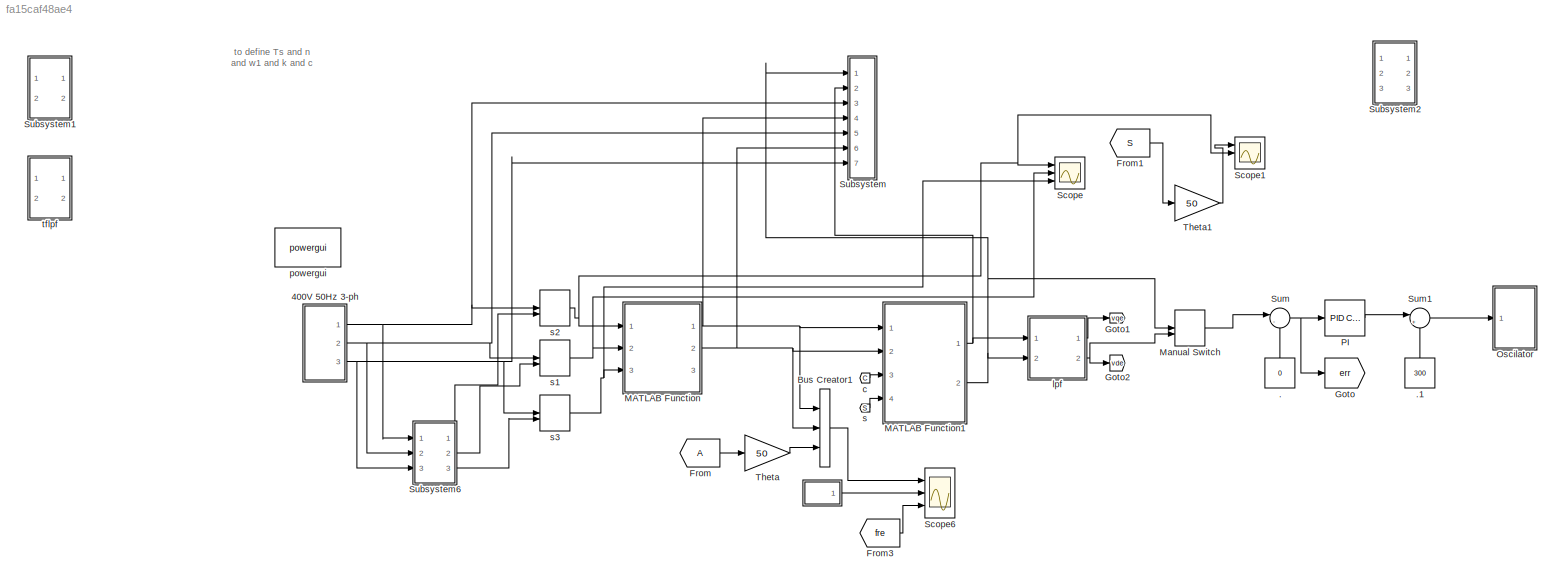
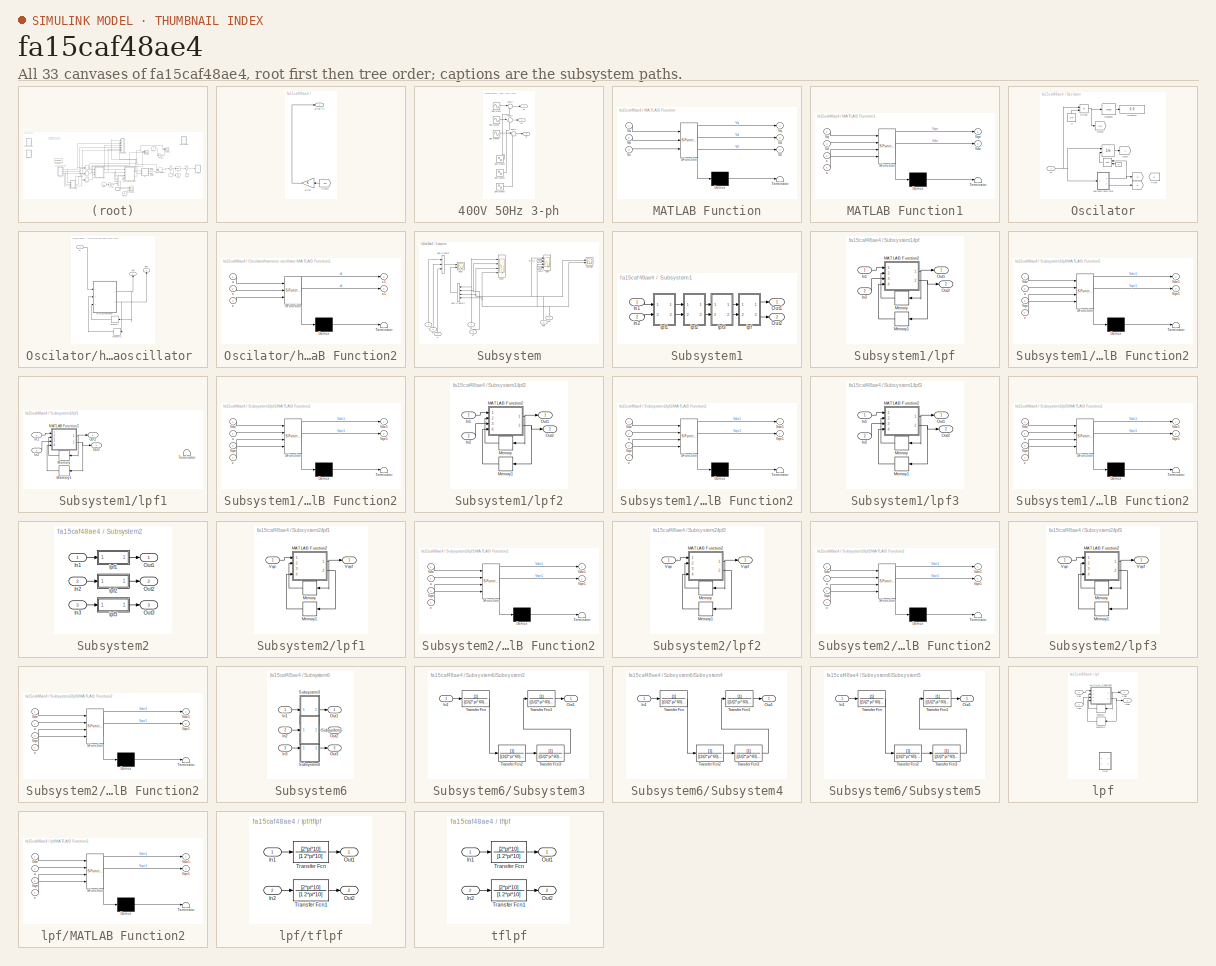
[diagram: thumbnail index - all 33 canvases of the model, root first then tree order]
MODEL slx_fa15caf48ae4
KIND model
CONFIG AbsTol = auto
CONFIG FixedStep = auto
CONFIG MaxStep = auto
CONFIG MinStep = auto
CONFIG RelTol = 1e-3
CONFIG SampleTimeConstraint = Unconstrained
CONFIG Solver = VariableStepAuto
CONFIG SolverMode = Auto
CONFIG SolverName = VariableStepAuto
CONFIG StartTime = 0.0
CONFIG StopTime = 0.5
BLOCK [SubSystem]                
  Ports = [0, 1]
  RequestExecContextInheritance = off
  Variant = off
BLOCK [Gain]                /Error
  OutDataTypeStr = Inherit: Inherit via internal rule
  ParamDataTypeStr = Inherit: Inherit via internal rule
  SaturateOnIntegerOverflow = off
BLOCK [Outport]                /Error PI
  IconDisplay = Port number
BLOCK [From]                /From4
  GotoTag = err
BLOCK [Constant] .
  Value = 0
BLOCK [Constant] .1
  Value = 300
BLOCK [SubSystem] 400V 50Hz 3-ph
  Ports = [0, 3]
  RequestExecContextInheritance = off
  Variant = off
BLOCK [Sin] 400V 50Hz 3-ph/Sine Wave
  Amplitude = c*400*sqrt(2)/sqrt(3)
  Frequency = w1
  Ports = [0, 1]
  SampleTime = Ts
BLOCK [Sin] 400V 50Hz 3-ph/Sine Wave1
  Amplitude = 400*sqrt(2)/sqrt(3)
  Frequency = w1
  Phase = -2*pi/3
  Ports = [0, 1]
  SampleTime = Ts
BLOCK [Sin] 400V 50Hz 3-ph/Sine Wave2
  Amplitude = 400*sqrt(2)/sqrt(3)
  Frequency = w1
  Phase = -4*pi/3
  Ports = [0, 1]
  SampleTime = Ts
BLOCK [Sin] 400V 50Hz 3-ph/Sine Wave3
  Amplitude = 0.2*400*sqrt(2)/sqrt(3)*k
  Frequency = w1*n
  Ports = [0, 1]
  SampleTime = Ts
BLOCK [Sin] 400V 50Hz 3-ph/Sine Wave4
  Amplitude = 0.2*k*400*sqrt(2)/sqrt(3)
  Frequency = w1*n
  Phase = -2*pi/3*n
  Ports = [0, 1]
  SampleTime = Ts
BLOCK [Sin] 400V 50Hz 3-ph/Sine Wave5
  Amplitude = 0.2*k*400*sqrt(2)/sqrt(3)
  Frequency = w1*n
  Phase = -4*pi/3*n
  Ports = [0, 1]
  SampleTime = Ts
BLOCK [Sum] 400V 50Hz 3-ph/Sum1
  IconShape = round
  InputSameDT = off
  Inputs = |++
  OutDataTypeStr = Inherit: Inherit via internal rule
  Ports = [2, 1]
  SaturateOnIntegerOverflow = off
BLOCK [Sum] 400V 50Hz 3-ph/Sum2
  IconShape = round
  InputSameDT = off
  Inputs = |++
  OutDataTypeStr = Inherit: Inherit via internal rule
  Ports = [2, 1]
  SaturateOnIntegerOverflow = off
BLOCK [Sum] 400V 50Hz 3-ph/Sum3
  IconShape = round
  InputSameDT = off
  Inputs = |++
  OutDataTypeStr = Inherit: Inherit via internal rule
  Ports = [2, 1]
  SaturateOnIntegerOverflow = off
BLOCK [Outport] 400V 50Hz 3-ph/Va
  IconDisplay = Port number
BLOCK [Outport] 400V 50Hz 3-ph/Vb
  IconDisplay = Port number
  Port = 2
BLOCK [Outport] 400V 50Hz 3-ph/Vc
  IconDisplay = Port number
  Port = 3
BLOCK [BusCreator] Bus Creator1
  DisplayOption = bar
  InheritFromInputs = on
  Inputs = 3
  Ports = [3, 1]
BLOCK [From] From
  TagVisibility = global
BLOCK [From] From1
  GotoTag = S
  TagVisibility = global
BLOCK [From] From3
  GotoTag = fre
  TagVisibility = global
BLOCK [Goto] Goto
  GotoTag = err
BLOCK [Goto] Goto1
  GotoTag = vqe
BLOCK [Goto] Goto2
  GotoTag = vde
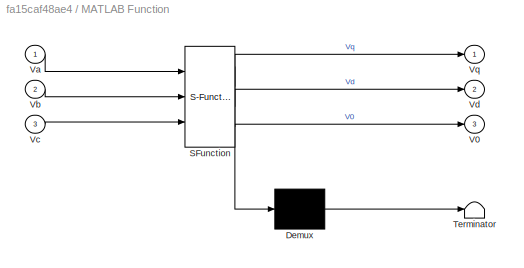
BLOCK [SubSystem] MATLAB Function
  ErrorFcn = Stateflow.Translate.translate
  PermitHierarchicalResolution = ExplicitOnly
  Ports = [3, 3]
  RequestExecContextInheritance = off
  SFBlockType = MATLAB Function
  TreatAsAtomicUnit = on
  Variant = off
BLOCK [Demux] MATLAB Function/ Demux 
  Outputs = 1
  Ports = [1, 1]
BLOCK [S-Function] MATLAB Function/ SFunction 
  EnableBusSupport = on
  FunctionName = sf_sfun
  PortCounts = [3 4]
  Ports = [3, 4]
  SFunctionDeploymentMode = off
  Tag = Stateflow S-Function dummy 2
BLOCK [Terminator] MATLAB Function/ Terminator 
BLOCK [Outport] MATLAB Function/V0
  IconDisplay = Port number
  Port = 3
BLOCK [Inport] MATLAB Function/Va
  IconDisplay = Port number
BLOCK [Inport] MATLAB Function/Vb
  IconDisplay = Port number
  Port = 2
BLOCK [Inport] MATLAB Function/Vc
  IconDisplay = Port number
  Port = 3
BLOCK [Outport] MATLAB Function/Vd
  IconDisplay = Port number
  Port = 2
BLOCK [Outport] MATLAB Function/Vq
  IconDisplay = Port number
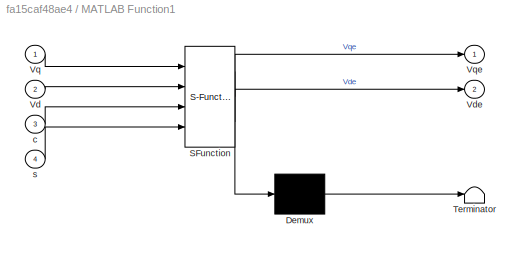
BLOCK [SubSystem] MATLAB Function1
  ErrorFcn = Stateflow.Translate.translate
  PermitHierarchicalResolution = ExplicitOnly
  Ports = [4, 2]
  RequestExecContextInheritance = off
  SFBlockType = MATLAB Function
  TreatAsAtomicUnit = on
  Variant = off
BLOCK [Demux] MATLAB Function1/ Demux 
  Outputs = 1
  Ports = [1, 1]
BLOCK [S-Function] MATLAB Function1/ SFunction 
  EnableBusSupport = on
  FunctionName = sf_sfun
  PortCounts = [4 3]
  Ports = [4, 3]
  SFunctionDeploymentMode = off
  Tag = Stateflow S-Function dummy 1
BLOCK [Terminator] MATLAB Function1/ Terminator 
BLOCK [Inport] MATLAB Function1/Vd
  IconDisplay = Port number
  Port = 2
BLOCK [Outport] MATLAB Function1/Vde
  IconDisplay = Port number
  Port = 2
BLOCK [Inport] MATLAB Function1/Vq
  IconDisplay = Port number
BLOCK [Outport] MATLAB Function1/Vqe
  IconDisplay = Port number
BLOCK [Inport] MATLAB Function1/c
  IconDisplay = Port number
  Port = 3
BLOCK [Inport] MATLAB Function1/s
  IconDisplay = Port number
  Port = 4
BLOCK [ManualSwitch] Manual Switch
BLOCK [SubSystem] Oscilator
  Ports = [1]
  RequestExecContextInheritance = off
  Variant = off
BLOCK [Constant] Oscilator/ 
  Value = 0
BLOCK [Integrator] Oscilator/  
  ExternalReset = rising
  LowerSaturationLimit = 0
  Ports = [2, 1]
  UpperSaturationLimit = 2*pi
BLOCK [Goto] Oscilator/   
  GotoTag = S
  TagVisibility = global
BLOCK [RelationalOperator] Oscilator/    
  InputSameDT = off
  OutDataTypeStr = boolean
  Ports = [2, 1]
BLOCK [Goto] Oscilator/          
  GotoTag = C
  TagVisibility = global
BLOCK [Constant] Oscilator/.2
  Value = 2*pi
BLOCK [Display] Oscilator/Display1
  Decimation = 1
  Ports = [1]
BLOCK [Product] Oscilator/Divide
  InputSameDT = off
  Inputs = */
  OutDataTypeStr = Inherit: Inherit via internal rule
  Ports = [2, 1]
  RndMeth = Floor
  SaturateOnIntegerOverflow = off
BLOCK [From] Oscilator/From
  GotoTag = S
  TagVisibility = global
BLOCK [Goto] Oscilator/Goto
  TagVisibility = global
BLOCK [Goto] Oscilator/Goto3
  GotoTag = fre
  TagVisibility = global
BLOCK [Inport] Oscilator/W
  IconDisplay = Port number
BLOCK [Reference] Oscilator/frequency  REF=powerlib_meascontrol/Measurements/Mean
  Ports = [1, 1]
  SourceBlock = powerlib_meascontrol/Measurements/Mean
  SourceType = Mean
BLOCK [SubSystem] Oscilator/harmonic oscillator 
  Ports = [1, 2]
  RequestExecContextInheritance = off
  Variant = off
BLOCK [Outport] Oscilator/harmonic oscillator /Cos
  IconDisplay = Port number
  Port = 2
BLOCK [SubSystem] Oscilator/harmonic oscillator /MATLAB Function2
  ErrorFcn = Stateflow.Translate.translate
  PermitHierarchicalResolution = ExplicitOnly
  Ports = [3, 2]
  RequestExecContextInheritance = off
  SFBlockType = MATLAB Function
  TreatAsAtomicUnit = on
  Variant = off
BLOCK [Demux] Oscilator/harmonic oscillator /MATLAB Function2/ Demux 
  Outputs = 1
  Ports = [1, 1]
BLOCK [S-Function] Oscilator/harmonic oscillator /MATLAB Function2/ SFunction 
  EnableBusSupport = on
  FunctionName = sf_sfun
  PortCounts = [3 3]
  Ports = [3, 3]
  SFunctionDeploymentMode = off
  Tag = Stateflow S-Function dummy 3
BLOCK [Terminator] Oscilator/harmonic oscillator /MATLAB Function2/ Terminator 
BLOCK [Inport] Oscilator/harmonic oscillator /MATLAB Function2/c
  IconDisplay = Port number
  Port = 3
BLOCK [Outport] Oscilator/harmonic oscillator /MATLAB Function2/c1
  IconDisplay = Port number
BLOCK [Inport] Oscilator/harmonic oscillator /MATLAB Function2/s
  IconDisplay = Port number
  Port = 2
BLOCK [Outport] Oscilator/harmonic oscillator /MATLAB Function2/s1
  IconDisplay = Port number
  Port = 2
BLOCK [Inport] Oscilator/harmonic oscillator /MATLAB Function2/u
  IconDisplay = Port number
BLOCK [Memory] Oscilator/harmonic oscillator /Memory
  X0 = 1
BLOCK [Memory] Oscilator/harmonic oscillator /Memory1
BLOCK [Outport] Oscilator/harmonic oscillator /Sine
  IconDisplay = Port number
BLOCK [Inport] Oscilator/harmonic oscillator /w
  IconDisplay = Port number
BLOCK [Reference] PI  REF=simulink/Continuous/PID Controller
  Ports = [1, 1]
  SourceBlock = simulink/Continuous/PID Controller
  SourceType = PID 1dof
BLOCK [Scope] Scope
  NumInputPorts = 3
  Ports = [3]
  ScopeSpecificationString = Simulink.scopes.TimeScopeBlockCfg('CurrentConfiguration', extmgr.ConfigurationSet(extmgr.Configuration('Core','General UI',true),extmgr.Configuration('Core','Source UI',true),extmgr.Configuration('Sources','WiredSimulink',true,'DataLoggingVariableName','ScopeData1'),extmgr.Configuration('Visuals','Time Domain',true,'SerializedDisplays',{struct('MinYLimReal','-326.04404','MaxYLimReal','335.73218','...<+1461ch>
BLOCK [Scope] Scope1
  NumInputPorts = 3
  Ports = [3]
  ScopeSpecificationString = Simulink.scopes.TimeScopeBlockCfg('CurrentConfiguration', extmgr.ConfigurationSet(extmgr.Configuration('Core','General UI',true),extmgr.Configuration('Core','Source UI',true),extmgr.Configuration('Sources','WiredSimulink',true,'DataLoggingVariableName','ScopeData2'),extmgr.Configuration('Visuals','Time Domain',true,'SerializedDisplays',{struct('MinYLimReal','-326.04404','MaxYLimReal','335.73218','...<+1471ch>
BLOCK [Scope] Scope6
  NumInputPorts = 3
  Ports = [3]
  ScopeSpecificationString = Simulink.scopes.TimeScopeBlockCfg('CurrentConfiguration', extmgr.ConfigurationSet(extmgr.Configuration('Core','General UI',true),extmgr.Configuration('Core','Source UI',true),extmgr.Configuration('Sources','WiredSimulink',true,'DataLoggingVariableName','ScopeData2'),extmgr.Configuration('Visuals','Time Domain',true,'SerializedDisplays',{struct('MinYLimReal','-408.24829','MaxYLimReal','408.24829','...<+3290ch>
BLOCK [SubSystem] Subsystem
  Ports = [7]
  RequestExecContextInheritance = off
  Variant = off
BLOCK [Inport] Subsystem/A
  IconDisplay = Port number
  Port = 3
BLOCK [Inport] Subsystem/B
  IconDisplay = Port number
  Port = 5
BLOCK [BusCreator] Subsystem/Bus Creator
  DisplayOption = bar
  InheritFromInputs = on
  Inputs = 3
  Ports = [3, 1]
BLOCK [BusCreator] Subsystem/Bus Creator4
  DisplayOption = bar
  InheritFromInputs = on
  Inputs = 4
  Ports = [4, 1]
BLOCK [Inport] Subsystem/C
  IconDisplay = Port number
  Port = 7
BLOCK [From] Subsystem/From1
  GotoTag = vqe
BLOCK [From] Subsystem/From2
  GotoTag = vde
BLOCK [Inport] Subsystem/Vd 
  IconDisplay = Port number
  Port = 6
BLOCK [Inport] Subsystem/Vde
  IconDisplay = Port number
BLOCK [Inport] Subsystem/Vq
  IconDisplay = Port number
  Port = 4
BLOCK [Inport] Subsystem/Vqe
  IconDisplay = Port number
  Port = 2
BLOCK [Scope] Subsystem/input
  NumInputPorts = 2
  Ports = [2]
  ScopeSpecificationString = Simulink.scopes.TimeScopeBlockCfg('CurrentConfiguration', extmgr.ConfigurationSet(extmgr.Configuration('Core','General UI',true),extmgr.Configuration('Core','Source UI',true),extmgr.Configuration('Sources','WiredSimulink',true),extmgr.Configuration('Visuals','Time Domain',true,'SerializedDisplays',{struct('MinYLimReal','-489.89795','MaxYLimReal','489.89795','YLabelReal','','MinYLimMag',' 0.00000',...<+3117ch>
BLOCK [Scope] Subsystem/vdlpf
  NumInputPorts = 4
  Ports = [4]
  ScopeSpecificationString = Simulink.scopes.TimeScopeBlockCfg('CurrentConfiguration', extmgr.ConfigurationSet(extmgr.Configuration('Core','General UI',true),extmgr.Configuration('Core','Source UI',true),extmgr.Configuration('Sources','WiredSimulink',true,'DataLoggingVariableName','ScopeData4'),extmgr.Configuration('Visuals','Time Domain',true,'SerializedDisplays',{struct('MinYLimReal','163.68687','MaxYLimReal','417.07496','Y...<+4344ch>
BLOCK [Scope] Subsystem/vdwolpf
  NumInputPorts = 2
  Ports = [2]
  ScopeSpecificationString = Simulink.scopes.TimeScopeBlockCfg('CurrentConfiguration', extmgr.ConfigurationSet(extmgr.Configuration('Core','General UI',true),extmgr.Configuration('Core','Source UI',true),extmgr.Configuration('Sources','WiredSimulink',true,'DataLoggingVariableName','ScopeData1'),extmgr.Configuration('Visuals','Time Domain',true,'SerializedDisplays',{struct('MinYLimReal','-40.49474','MaxYLimReal','368.7961','YL...<+2150ch>
BLOCK [Scope] Subsystem/vqvd
  NumInputPorts = 4
  Ports = [4]
  ScopeSpecificationString = Simulink.scopes.TimeScopeBlockCfg('CurrentConfiguration', extmgr.ConfigurationSet(extmgr.Configuration('Core','General UI',true),extmgr.Configuration('Core','Source UI',true),extmgr.Configuration('Sources','WiredSimulink',true,'DataLoggingVariableName','ScopeData3'),extmgr.Configuration('Visuals','Time Domain',true,'SerializedDisplays',{struct('MinYLimReal','-898.25999','MaxYLimReal','899.17003','...<+4392ch>
BLOCK [SubSystem] Subsystem1
  Ports = [2, 2]
  RequestExecContextInheritance = off
  Variant = off
BLOCK [Inport] Subsystem1/In1
  IconDisplay = Port number
BLOCK [Inport] Subsystem1/In2
  IconDisplay = Port number
  Port = 2
BLOCK [Outport] Subsystem1/Out1
  IconDisplay = Port number
BLOCK [Outport] Subsystem1/Out2
  IconDisplay = Port number
  Port = 2
BLOCK [SubSystem] Subsystem1/lpf
  Ports = [2, 2]
  RequestExecContextInheritance = off
  Variant = off
BLOCK [Inport] Subsystem1/lpf/In1
  IconDisplay = Port number
BLOCK [Inport] Subsystem1/lpf/In2
  IconDisplay = Port number
  Port = 2
BLOCK [SubSystem] Subsystem1/lpf/MATLAB Function2
  ErrorFcn = Stateflow.Translate.translate
  PermitHierarchicalResolution = ExplicitOnly
  Ports = [4, 2]
  RequestExecContextInheritance = off
  SFBlockType = MATLAB Function
  TreatAsAtomicUnit = on
  Variant = off
BLOCK [Demux] Subsystem1/lpf/MATLAB Function2/ Demux 
  Outputs = 1
  Ports = [1, 1]
BLOCK [S-Function] Subsystem1/lpf/MATLAB Function2/ SFunction 
  EnableBusSupport = on
  FunctionName = sf_sfun
  PortCounts = [4 3]
  Ports = [4, 3]
  SFunctionDeploymentMode = off
  Tag = Stateflow S-Function dummy 5
BLOCK [Terminator] Subsystem1/lpf/MATLAB Function2/ Terminator 
BLOCK [Inport] Subsystem1/lpf/MATLAB Function2/Vde
  IconDisplay = Port number
BLOCK [Outport] Subsystem1/lpf/MATLAB Function2/Vde1
  IconDisplay = Port number
BLOCK [Inport] Subsystem1/lpf/MATLAB Function2/Vqe
  IconDisplay = Port number
  Port = 3
BLOCK [Outport] Subsystem1/lpf/MATLAB Function2/Vqe1
  IconDisplay = Port number
  Port = 2
BLOCK [Inport] Subsystem1/lpf/MATLAB Function2/u
  IconDisplay = Port number
  Port = 2
BLOCK [Inport] Subsystem1/lpf/MATLAB Function2/v
  IconDisplay = Port number
  Port = 4
BLOCK [Memory] Subsystem1/lpf/Memory
BLOCK [Memory] Subsystem1/lpf/Memory1
BLOCK [Outport] Subsystem1/lpf/Out1
  IconDisplay = Port number
BLOCK [Outport] Subsystem1/lpf/Out2
  IconDisplay = Port number
  Port = 2
BLOCK [SubSystem] Subsystem1/lpf1
  Ports = [2, 2]
  RequestExecContextInheritance = off
  Variant = off
BLOCK [Inport] Subsystem1/lpf1/In1
  IconDisplay = Port number
BLOCK [Inport] Subsystem1/lpf1/In2
  IconDisplay = Port number
  Port = 2
BLOCK [SubSystem] Subsystem1/lpf1/MATLAB Function2
  ErrorFcn = Stateflow.Translate.translate
  PermitHierarchicalResolution = ExplicitOnly
  Ports = [4, 2]
  RequestExecContextInheritance = off
  SFBlockType = MATLAB Function
  TreatAsAtomicUnit = on
  Variant = off
BLOCK [Demux] Subsystem1/lpf1/MATLAB Function2/ Demux 
  Outputs = 1
  Ports = [1, 1]
BLOCK [S-Function] Subsystem1/lpf1/MATLAB Function2/ SFunction 
  EnableBusSupport = on
  FunctionName = sf_sfun
  PortCounts = [4 3]
  Ports = [4, 3]
  SFunctionDeploymentMode = off
  Tag = Stateflow S-Function dummy 6
BLOCK [Terminator] Subsystem1/lpf1/MATLAB Function2/ Terminator 
BLOCK [Inport] Subsystem1/lpf1/MATLAB Function2/Vde
  IconDisplay = Port number
BLOCK [Outport] Subsystem1/lpf1/MATLAB Function2/Vde1
  IconDisplay = Port number
BLOCK [Inport] Subsystem1/lpf1/MATLAB Function2/Vqe
  IconDisplay = Port number
  Port = 3
BLOCK [Outport] Subsystem1/lpf1/MATLAB Function2/Vqe1
  IconDisplay = Port number
  Port = 2
BLOCK [Inport] Subsystem1/lpf1/MATLAB Function2/u
  IconDisplay = Port number
  Port = 2
BLOCK [Inport] Subsystem1/lpf1/MATLAB Function2/v
  IconDisplay = Port number
  Port = 4
BLOCK [Memory] Subsystem1/lpf1/Memory
BLOCK [Memory] Subsystem1/lpf1/Memory1
BLOCK [Outport] Subsystem1/lpf1/Out1
  IconDisplay = Port number
BLOCK [Outport] Subsystem1/lpf1/Out2
  IconDisplay = Port number
  Port = 2
BLOCK [Terminator] Subsystem1/lpf1/Terminator
BLOCK [SubSystem] Subsystem1/lpf2
  Ports = [2, 2]
  RequestExecContextInheritance = off
  Variant = off
BLOCK [Inport] Subsystem1/lpf2/In1
  IconDisplay = Port number
BLOCK [Inport] Subsystem1/lpf2/In2
  IconDisplay = Port number
  Port = 2
BLOCK [SubSystem] Subsystem1/lpf2/MATLAB Function2
  ErrorFcn = Stateflow.Translate.translate
  PermitHierarchicalResolution = ExplicitOnly
  Ports = [4, 2]
  RequestExecContextInheritance = off
  SFBlockType = MATLAB Function
  TreatAsAtomicUnit = on
  Variant = off
BLOCK [Demux] Subsystem1/lpf2/MATLAB Function2/ Demux 
  Outputs = 1
  Ports = [1, 1]
BLOCK [S-Function] Subsystem1/lpf2/MATLAB Function2/ SFunction 
  EnableBusSupport = on
  FunctionName = sf_sfun
  PortCounts = [4 3]
  Ports = [4, 3]
  SFunctionDeploymentMode = off
  Tag = Stateflow S-Function dummy 7
BLOCK [Terminator] Subsystem1/lpf2/MATLAB Function2/ Terminator 
BLOCK [Inport] Subsystem1/lpf2/MATLAB Function2/Vde
  IconDisplay = Port number
BLOCK [Outport] Subsystem1/lpf2/MATLAB Function2/Vde1
  IconDisplay = Port number
BLOCK [Inport] Subsystem1/lpf2/MATLAB Function2/Vqe
  IconDisplay = Port number
  Port = 3
BLOCK [Outport] Subsystem1/lpf2/MATLAB Function2/Vqe1
  IconDisplay = Port number
  Port = 2
BLOCK [Inport] Subsystem1/lpf2/MATLAB Function2/u
  IconDisplay = Port number
  Port = 2
BLOCK [Inport] Subsystem1/lpf2/MATLAB Function2/v
  IconDisplay = Port number
  Port = 4
BLOCK [Memory] Subsystem1/lpf2/Memory
BLOCK [Memory] Subsystem1/lpf2/Memory1
BLOCK [Outport] Subsystem1/lpf2/Out1
  IconDisplay = Port number
BLOCK [Outport] Subsystem1/lpf2/Out2
  IconDisplay = Port number
  Port = 2
BLOCK [SubSystem] Subsystem1/lpf3
  Ports = [2, 2]
  RequestExecContextInheritance = off
  Variant = off
BLOCK [Inport] Subsystem1/lpf3/In1
  IconDisplay = Port number
BLOCK [Inport] Subsystem1/lpf3/In2
  IconDisplay = Port number
  Port = 2
BLOCK [SubSystem] Subsystem1/lpf3/MATLAB Function2
  ErrorFcn = Stateflow.Translate.translate
  PermitHierarchicalResolution = ExplicitOnly
  Ports = [4, 2]
  RequestExecContextInheritance = off
  SFBlockType = MATLAB Function
  TreatAsAtomicUnit = on
  Variant = off
BLOCK [Demux] Subsystem1/lpf3/MATLAB Function2/ Demux 
  Outputs = 1
  Ports = [1, 1]
BLOCK [S-Function] Subsystem1/lpf3/MATLAB Function2/ SFunction 
  EnableBusSupport = on
  FunctionName = sf_sfun
  PortCounts = [4 3]
  Ports = [4, 3]
  SFunctionDeploymentMode = off
  Tag = Stateflow S-Function dummy 8
BLOCK [Terminator] Subsystem1/lpf3/MATLAB Function2/ Terminator 
BLOCK [Inport] Subsystem1/lpf3/MATLAB Function2/Vde
  IconDisplay = Port number
BLOCK [Outport] Subsystem1/lpf3/MATLAB Function2/Vde1
  IconDisplay = Port number
BLOCK [Inport] Subsystem1/lpf3/MATLAB Function2/Vqe
  IconDisplay = Port number
  Port = 3
BLOCK [Outport] Subsystem1/lpf3/MATLAB Function2/Vqe1
  IconDisplay = Port number
  Port = 2
BLOCK [Inport] Subsystem1/lpf3/MATLAB Function2/u
  IconDisplay = Port number
  Port = 2
BLOCK [Inport] Subsystem1/lpf3/MATLAB Function2/v
  IconDisplay = Port number
  Port = 4
BLOCK [Memory] Subsystem1/lpf3/Memory
BLOCK [Memory] Subsystem1/lpf3/Memory1
BLOCK [Outport] Subsystem1/lpf3/Out1
  IconDisplay = Port number
BLOCK [Outport] Subsystem1/lpf3/Out2
  IconDisplay = Port number
  Port = 2
BLOCK [SubSystem] Subsystem2
  Ports = [3, 3]
  RequestExecContextInheritance = off
  Variant = off
BLOCK [Inport] Subsystem2/In1
  IconDisplay = Port number
BLOCK [Inport] Subsystem2/In2
  IconDisplay = Port number
  Port = 2
BLOCK [Inport] Subsystem2/In3
  IconDisplay = Port number
  Port = 3
BLOCK [Outport] Subsystem2/Out1
  IconDisplay = Port number
BLOCK [Outport] Subsystem2/Out2
  IconDisplay = Port number
  Port = 2
BLOCK [Outport] Subsystem2/Out3
  IconDisplay = Port number
  Port = 3
BLOCK [SubSystem] Subsystem2/lpf1
  Ports = [1, 1]
  RequestExecContextInheritance = off
  Variant = off
BLOCK [SubSystem] Subsystem2/lpf1/MATLAB Function2
  ErrorFcn = Stateflow.Translate.translate
  PermitHierarchicalResolution = ExplicitOnly
  Ports = [4, 2]
  RequestExecContextInheritance = off
  SFBlockType = MATLAB Function
  TreatAsAtomicUnit = on
  Variant = off
BLOCK [Demux] Subsystem2/lpf1/MATLAB Function2/ Demux 
  Outputs = 1
  Ports = [1, 1]
BLOCK [S-Function] Subsystem2/lpf1/MATLAB Function2/ SFunction 
  EnableBusSupport = on
  FunctionName = sf_sfun
  PortCounts = [4 3]
  Ports = [4, 3]
  SFunctionDeploymentMode = off
  Tag = Stateflow S-Function dummy 9
BLOCK [Terminator] Subsystem2/lpf1/MATLAB Function2/ Terminator 
BLOCK [Inport] Subsystem2/lpf1/MATLAB Function2/Vde
  IconDisplay = Port number
BLOCK [Outport] Subsystem2/lpf1/MATLAB Function2/Vde1
  IconDisplay = Port number
BLOCK [Inport] Subsystem2/lpf1/MATLAB Function2/Vqe
  IconDisplay = Port number
  Port = 3
BLOCK [Outport] Subsystem2/lpf1/MATLAB Function2/Vqe1
  IconDisplay = Port number
  Port = 2
BLOCK [Inport] Subsystem2/lpf1/MATLAB Function2/u
  IconDisplay = Port number
  Port = 2
BLOCK [Inport] Subsystem2/lpf1/MATLAB Function2/v
  IconDisplay = Port number
  Port = 4
BLOCK [Memory] Subsystem2/lpf1/Memory
BLOCK [Memory] Subsystem2/lpf1/Memory1
BLOCK [Inport] Subsystem2/lpf1/Vqe
  IconDisplay = Port number
BLOCK [Outport] Subsystem2/lpf1/Vqef
  IconDisplay = Port number
BLOCK [SubSystem] Subsystem2/lpf2
  Ports = [1, 1]
  RequestExecContextInheritance = off
  Variant = off
BLOCK [SubSystem] Subsystem2/lpf2/MATLAB Function2
  ErrorFcn = Stateflow.Translate.translate
  PermitHierarchicalResolution = ExplicitOnly
  Ports = [4, 2]
  RequestExecContextInheritance = off
  SFBlockType = MATLAB Function
  TreatAsAtomicUnit = on
  Variant = off
BLOCK [Demux] Subsystem2/lpf2/MATLAB Function2/ Demux 
  Outputs = 1
  Ports = [1, 1]
BLOCK [S-Function] Subsystem2/lpf2/MATLAB Function2/ SFunction 
  EnableBusSupport = on
  FunctionName = sf_sfun
  PortCounts = [4 3]
  Ports = [4, 3]
  SFunctionDeploymentMode = off
  Tag = Stateflow S-Function dummy 10
BLOCK [Terminator] Subsystem2/lpf2/MATLAB Function2/ Terminator 
BLOCK [Inport] Subsystem2/lpf2/MATLAB Function2/Vde
  IconDisplay = Port number
BLOCK [Outport] Subsystem2/lpf2/MATLAB Function2/Vde1
  IconDisplay = Port number
BLOCK [Inport] Subsystem2/lpf2/MATLAB Function2/Vqe
  IconDisplay = Port number
  Port = 3
BLOCK [Outport] Subsystem2/lpf2/MATLAB Function2/Vqe1
  IconDisplay = Port number
  Port = 2
BLOCK [Inport] Subsystem2/lpf2/MATLAB Function2/u
  IconDisplay = Port number
  Port = 2
BLOCK [Inport] Subsystem2/lpf2/MATLAB Function2/v
  IconDisplay = Port number
  Port = 4
BLOCK [Memory] Subsystem2/lpf2/Memory
BLOCK [Memory] Subsystem2/lpf2/Memory1
BLOCK [Inport] Subsystem2/lpf2/Vqe
  IconDisplay = Port number
BLOCK [Outport] Subsystem2/lpf2/Vqef
  IconDisplay = Port number
BLOCK [SubSystem] Subsystem2/lpf3
  Ports = [1, 1]
  RequestExecContextInheritance = off
  Variant = off
BLOCK [SubSystem] Subsystem2/lpf3/MATLAB Function2
  ErrorFcn = Stateflow.Translate.translate
  PermitHierarchicalResolution = ExplicitOnly
  Ports = [4, 2]
  RequestExecContextInheritance = off
  SFBlockType = MATLAB Function
  TreatAsAtomicUnit = on
  Variant = off
BLOCK [Demux] Subsystem2/lpf3/MATLAB Function2/ Demux 
  Outputs = 1
  Ports = [1, 1]
BLOCK [S-Function] Subsystem2/lpf3/MATLAB Function2/ SFunction 
  EnableBusSupport = on
  FunctionName = sf_sfun
  PortCounts = [4 3]
  Ports = [4, 3]
  SFunctionDeploymentMode = off
  Tag = Stateflow S-Function dummy 11
BLOCK [Terminator] Subsystem2/lpf3/MATLAB Function2/ Terminator 
BLOCK [Inport] Subsystem2/lpf3/MATLAB Function2/Vde
  IconDisplay = Port number
BLOCK [Outport] Subsystem2/lpf3/MATLAB Function2/Vde1
  IconDisplay = Port number
BLOCK [Inport] Subsystem2/lpf3/MATLAB Function2/Vqe
  IconDisplay = Port number
  Port = 3
BLOCK [Outport] Subsystem2/lpf3/MATLAB Function2/Vqe1
  IconDisplay = Port number
  Port = 2
BLOCK [Inport] Subsystem2/lpf3/MATLAB Function2/u
  IconDisplay = Port number
  Port = 2
BLOCK [Inport] Subsystem2/lpf3/MATLAB Function2/v
  IconDisplay = Port number
  Port = 4
BLOCK [Memory] Subsystem2/lpf3/Memory
BLOCK [Memory] Subsystem2/lpf3/Memory1
BLOCK [Inport] Subsystem2/lpf3/Vqe
  IconDisplay = Port number
BLOCK [Outport] Subsystem2/lpf3/Vqef
  IconDisplay = Port number
BLOCK [SubSystem] Subsystem6
  Ports = [3, 3]
  RequestExecContextInheritance = off
  Variant = off
BLOCK [Inport] Subsystem6/In1
  IconDisplay = Port number
BLOCK [Inport] Subsystem6/In2
  IconDisplay = Port number
  Port = 2
BLOCK [Inport] Subsystem6/In3
  IconDisplay = Port number
  Port = 3
BLOCK [Outport] Subsystem6/Out1
  IconDisplay = Port number
BLOCK [Outport] Subsystem6/Out2
  IconDisplay = Port number
  Port = 2
BLOCK [Outport] Subsystem6/Out3
  IconDisplay = Port number
  Port = 3
BLOCK [SubSystem] Subsystem6/Subsystem3
  Ports = [1, 1]
  RequestExecContextInheritance = off
  Variant = off
BLOCK [Inport] Subsystem6/Subsystem3/In1
  IconDisplay = Port number
BLOCK [Outport] Subsystem6/Subsystem3/Out1
  IconDisplay = Port number
BLOCK [TransferFcn] Subsystem6/Subsystem3/Transfer Fcn
  Denominator = [(1/(2*pi*60)) 1]
BLOCK [TransferFcn] Subsystem6/Subsystem3/Transfer Fcn1
  Denominator = [(1/(2*pi*60)) 1]
BLOCK [TransferFcn] Subsystem6/Subsystem3/Transfer Fcn2
  Denominator = [(1/(2*pi*60)) 1]
BLOCK [TransferFcn] Subsystem6/Subsystem3/Transfer Fcn3
  Denominator = [(1/(2*pi*60)) 1]
BLOCK [SubSystem] Subsystem6/Subsystem4
  Ports = [1, 1]
  RequestExecContextInheritance = off
  Variant = off
BLOCK [Inport] Subsystem6/Subsystem4/In1
  IconDisplay = Port number
BLOCK [Outport] Subsystem6/Subsystem4/Out1
  IconDisplay = Port number
BLOCK [TransferFcn] Subsystem6/Subsystem4/Transfer Fcn
  Denominator = [(1/(2*pi*60)) 1]
BLOCK [TransferFcn] Subsystem6/Subsystem4/Transfer Fcn1
  Denominator = [(1/(2*pi*60)) 1]
BLOCK [TransferFcn] Subsystem6/Subsystem4/Transfer Fcn2
  Denominator = [(1/(2*pi*60)) 1]
BLOCK [TransferFcn] Subsystem6/Subsystem4/Transfer Fcn3
  Denominator = [(1/(2*pi*60)) 1]
BLOCK [SubSystem] Subsystem6/Subsystem5
  Ports = [1, 1]
  RequestExecContextInheritance = off
  Variant = off
BLOCK [Inport] Subsystem6/Subsystem5/In1
  IconDisplay = Port number
BLOCK [Outport] Subsystem6/Subsystem5/Out1
  IconDisplay = Port number
BLOCK [TransferFcn] Subsystem6/Subsystem5/Transfer Fcn
  Denominator = [(1/(2*pi*60)) 1]
BLOCK [TransferFcn] Subsystem6/Subsystem5/Transfer Fcn1
  Denominator = [(1/(2*pi*60)) 1]
BLOCK [TransferFcn] Subsystem6/Subsystem5/Transfer Fcn2
  Denominator = [(1/(2*pi*60)) 1]
BLOCK [TransferFcn] Subsystem6/Subsystem5/Transfer Fcn3
  Denominator = [(1/(2*pi*60)) 1]
BLOCK [Sum] Sum
  IconShape = round
  InputSameDT = off
  Inputs = |-+
  OutDataTypeStr = Inherit: Inherit via internal rule
  Ports = [2, 1]
  SaturateOnIntegerOverflow = off
BLOCK [Sum] Sum1
  IconShape = round
  InputSameDT = off
  Inputs = |++
  OutDataTypeStr = Inherit: Inherit via internal rule
  Ports = [2, 1]
  SaturateOnIntegerOverflow = off
BLOCK [Gain] Theta
  Gain = 50
  OutDataTypeStr = Inherit: Inherit via internal rule
  ParamDataTypeStr = Inherit: Inherit via internal rule
  SaturateOnIntegerOverflow = off
BLOCK [Gain] Theta1
  Gain = 50
  OutDataTypeStr = Inherit: Inherit via internal rule
  ParamDataTypeStr = Inherit: Inherit via internal rule
  SaturateOnIntegerOverflow = off
BLOCK [From] c 
  GotoTag = C
  TagVisibility = global
BLOCK [SubSystem] lpf
  Ports = [2, 2]
  RequestExecContextInheritance = off
  Variant = off
BLOCK [SubSystem] lpf/MATLAB Function2
  ErrorFcn = Stateflow.Translate.translate
  PermitHierarchicalResolution = ExplicitOnly
  Ports = [4, 2]
  RequestExecContextInheritance = off
  SFBlockType = MATLAB Function
  TreatAsAtomicUnit = on
  Variant = off
BLOCK [Demux] lpf/MATLAB Function2/ Demux 
  Outputs = 1
  Ports = [1, 1]
BLOCK [S-Function] lpf/MATLAB Function2/ SFunction 
  EnableBusSupport = on
  FunctionName = sf_sfun
  PortCounts = [4 3]
  Ports = [4, 3]
  SFunctionDeploymentMode = off
  Tag = Stateflow S-Function dummy 4
BLOCK [Terminator] lpf/MATLAB Function2/ Terminator 
BLOCK [Inport] lpf/MATLAB Function2/Vde
  IconDisplay = Port number
BLOCK [Outport] lpf/MATLAB Function2/Vde1
  IconDisplay = Port number
BLOCK [Inport] lpf/MATLAB Function2/Vqe
  IconDisplay = Port number
  Port = 3
BLOCK [Outport] lpf/MATLAB Function2/Vqe1
  IconDisplay = Port number
  Port = 2
BLOCK [Inport] lpf/MATLAB Function2/u
  IconDisplay = Port number
  Port = 2
BLOCK [Inport] lpf/MATLAB Function2/v
  IconDisplay = Port number
  Port = 4
BLOCK [Memory] lpf/Memory
BLOCK [Memory] lpf/Memory1
BLOCK [Inport] lpf/Vde
  IconDisplay = Port number
  Port = 2
BLOCK [Outport] lpf/Vdef
  IconDisplay = Port number
  Port = 2
BLOCK [Inport] lpf/Vqe
  IconDisplay = Port number
BLOCK [Outport] lpf/Vqef
  IconDisplay = Port number
BLOCK [SubSystem] lpf/tflpf
  Ports = [2, 2]
  RequestExecContextInheritance = off
  Variant = off
BLOCK [Inport] lpf/tflpf/In1
  IconDisplay = Port number
BLOCK [Inport] lpf/tflpf/In2
  IconDisplay = Port number
  Port = 2
BLOCK [Outport] lpf/tflpf/Out1
  IconDisplay = Port number
BLOCK [Outport] lpf/tflpf/Out2
  IconDisplay = Port number
  Port = 2
BLOCK [TransferFcn] lpf/tflpf/Transfer Fcn
  Denominator = [1 2*pi*10]
  Numerator = [2*pi*10]
BLOCK [TransferFcn] lpf/tflpf/Transfer Fcn1
  Denominator = [1 2*pi*10]
  Numerator = [2*pi*10]
BLOCK [Reference] powergui  REF=powerlib/powergui
  Ports = []
  Priority = 1
  SourceBlock = powerlib/powergui
  SourceType = PSB option menu block
  UserDataPersistent = on
BLOCK [From] s 
  GotoTag = S
  TagVisibility = global
BLOCK [ManualSwitch] s1
  CurrentSetting = 0
BLOCK [ManualSwitch] s2
  CurrentSetting = 0
BLOCK [ManualSwitch] s3 
  CurrentSetting = 0
BLOCK [SubSystem] tflpf
  Ports = [2, 2]
  RequestExecContextInheritance = off
  Variant = off
BLOCK [Inport] tflpf/In1
  IconDisplay = Port number
BLOCK [Inport] tflpf/In2
  IconDisplay = Port number
  Port = 2
BLOCK [Outport] tflpf/Out1
  IconDisplay = Port number
BLOCK [Outport] tflpf/Out2
  IconDisplay = Port number
  Port = 2
BLOCK [TransferFcn] tflpf/Transfer Fcn
  Denominator = [1 2*pi*10]
  Numerator = [2*pi*10]
BLOCK [TransferFcn] tflpf/Transfer Fcn1
  Denominator = [1 2*pi*10]
  Numerator = [2*pi*10]
ANNOTATION (root): to define Ts and n and w1 and k and c
LINE                /Error:1 ->                /Error PI:1
LINE                /From4:1 ->                /Error:1
LINE                :1 -> Scope6:2
LINE .1:1 -> Sum1:2
LINE .:1 -> Sum:2
LINE 400V 50Hz 3-ph/Sine Wave1:1 -> 400V 50Hz 3-ph/Sum2:1
LINE 400V 50Hz 3-ph/Sine Wave2:1 -> 400V 50Hz 3-ph/Sum1:1
LINE 400V 50Hz 3-ph/Sine Wave3:1 -> 400V 50Hz 3-ph/Sum3:2
LINE 400V 50Hz 3-ph/Sine Wave4:1 -> 400V 50Hz 3-ph/Sum2:2
LINE 400V 50Hz 3-ph/Sine Wave5:1 -> 400V 50Hz 3-ph/Sum1:2
LINE 400V 50Hz 3-ph/Sine Wave:1 -> 400V 50Hz 3-ph/Sum3:1
LINE 400V 50Hz 3-ph/Sum1:1 -> 400V 50Hz 3-ph/Vc:1
LINE 400V 50Hz 3-ph/Sum2:1 -> 400V 50Hz 3-ph/Vb:1
LINE 400V 50Hz 3-ph/Sum3:1 -> 400V 50Hz 3-ph/Va:1
NET 400V 50Hz 3-ph:1 -> Subsystem6:1, Subsystem:3, s2:1
NET 400V 50Hz 3-ph:2 -> Subsystem6:2, Subsystem:5, s1:1
NET 400V 50Hz 3-ph:3 -> Subsystem6:3, Subsystem:7, s3 :1
LINE Bus Creator1:1 -> Scope6:1
LINE From1:1 -> Theta1:1
LINE From3:1 -> Scope6:3
LINE From:1 -> Theta:1
NET MATLAB Function1:1 -> Subsystem:2, lpf:1
NET MATLAB Function1:2 -> Manual Switch:1, Subsystem:1, lpf:2
NET MATLAB Function:1 -> Bus Creator1:1, MATLAB Function1:1, Subsystem:4
NET MATLAB Function:2 -> Bus Creator1:2, MATLAB Function1:2, Subsystem:6
LINE Manual Switch:1 -> Sum:1
LINE Oscilator/    :1 -> Oscilator/  :2
LINE Oscilator/  :1 -> Oscilator/Goto:1
LINE Oscilator/ :1 -> Oscilator/    :2
LINE Oscilator/.2:1 -> Oscilator/Divide:2
NET Oscilator/Divide:1 -> Oscilator/Goto3:1, Oscilator/frequency:1
NET Oscilator/W:1 -> Oscilator/  :1, Oscilator/Divide:1, Oscilator/harmonic oscillator :1
LINE Oscilator/frequency:1 -> Oscilator/Display1:1
NET Oscilator/harmonic oscillator /MATLAB Function2:1 -> Oscilator/harmonic oscillator /Cos:1, Oscilator/harmonic oscillator /Memory:1
NET Oscilator/harmonic oscillator /MATLAB Function2:2 -> Oscilator/harmonic oscillator /Memory1:1, Oscilator/harmonic oscillator /Sine:1
LINE Oscilator/harmonic oscillator /Memory1:1 -> Oscilator/harmonic oscillator /MATLAB Function2:2
LINE Oscilator/harmonic oscillator /Memory:1 -> Oscilator/harmonic oscillator /MATLAB Function2:3
LINE Oscilator/harmonic oscillator /w:1 -> Oscilator/harmonic oscillator /MATLAB Function2:1
NET Oscilator/harmonic oscillator :1 -> Oscilator/    :1, Oscilator/   :1
LINE Oscilator/harmonic oscillator :2 -> Oscilator/          :1
LINE PI:1 -> Sum1:1
LINE Subsystem/A:1 -> Subsystem/Bus Creator:1
LINE Subsystem/B:1 -> Subsystem/Bus Creator:2
LINE Subsystem/Bus Creator4:1 -> Subsystem/input:2
LINE Subsystem/Bus Creator:1 -> Subsystem/input:1
LINE Subsystem/C:1 -> Subsystem/Bus Creator:3
LINE Subsystem/From1:1 -> Subsystem/vdlpf:2
LINE Subsystem/From2:1 -> Subsystem/vdlpf:4
NET Subsystem/Vd :1 -> Subsystem/Bus Creator4:2, Subsystem/vqvd:2
NET Subsystem/Vde:1 -> Subsystem/Bus Creator4:4, Subsystem/vdlpf:3, Subsystem/vdwolpf:2, Subsystem/vqvd:4
NET Subsystem/Vq:1 -> Subsystem/Bus Creator4:1, Subsystem/vqvd:1
NET Subsystem/Vqe:1 -> Subsystem/Bus Creator4:3, Subsystem/vdlpf:1, Subsystem/vdwolpf:1, Subsystem/vqvd:3
LINE Subsystem1/In1:1 -> Subsystem1/lpf1:1
LINE Subsystem1/In2:1 -> Subsystem1/lpf1:2
LINE Subsystem1/lpf/In1:1 -> Subsystem1/lpf/MATLAB Function2:1
LINE Subsystem1/lpf/In2:1 -> Subsystem1/lpf/MATLAB Function2:3
NET Subsystem1/lpf/MATLAB Function2:1 -> Subsystem1/lpf/Memory:1, Subsystem1/lpf/Out1:1
NET Subsystem1/lpf/MATLAB Function2:2 -> Subsystem1/lpf/Memory1:1, Subsystem1/lpf/Out2:1
LINE Subsystem1/lpf/Memory1:1 -> Subsystem1/lpf/MATLAB Function2:4
LINE Subsystem1/lpf/Memory:1 -> Subsystem1/lpf/MATLAB Function2:2
LINE Subsystem1/lpf1/In1:1 -> Subsystem1/lpf1/MATLAB Function2:1
LINE Subsystem1/lpf1/In2:1 -> Subsystem1/lpf1/MATLAB Function2:3
NET Subsystem1/lpf1/MATLAB Function2:1 -> Subsystem1/lpf1/Memory:1, Subsystem1/lpf1/Out1:1
NET Subsystem1/lpf1/MATLAB Function2:2 -> Subsystem1/lpf1/Memory1:1, Subsystem1/lpf1/Out2:1
LINE Subsystem1/lpf1/Memory1:1 -> Subsystem1/lpf1/MATLAB Function2:4
LINE Subsystem1/lpf1/Memory:1 -> Subsystem1/lpf1/MATLAB Function2:2
LINE Subsystem1/lpf1:1 -> Subsystem1/lpf2:1
LINE Subsystem1/lpf1:2 -> Subsystem1/lpf2:2
LINE Subsystem1/lpf2/In1:1 -> Subsystem1/lpf2/MATLAB Function2:1
LINE Subsystem1/lpf2/In2:1 -> Subsystem1/lpf2/MATLAB Function2:3
NET Subsystem1/lpf2/MATLAB Function2:1 -> Subsystem1/lpf2/Memory:1, Subsystem1/lpf2/Out1:1
NET Subsystem1/lpf2/MATLAB Function2:2 -> Subsystem1/lpf2/Memory1:1, Subsystem1/lpf2/Out2:1
LINE Subsystem1/lpf2/Memory1:1 -> Subsystem1/lpf2/MATLAB Function2:4
LINE Subsystem1/lpf2/Memory:1 -> Subsystem1/lpf2/MATLAB Function2:2
LINE Subsystem1/lpf2:1 -> Subsystem1/lpf3:1
LINE Subsystem1/lpf2:2 -> Subsystem1/lpf3:2
LINE Subsystem1/lpf3/In1:1 -> Subsystem1/lpf3/MATLAB Function2:1
LINE Subsystem1/lpf3/In2:1 -> Subsystem1/lpf3/MATLAB Function2:3
NET Subsystem1/lpf3/MATLAB Function2:1 -> Subsystem1/lpf3/Memory:1, Subsystem1/lpf3/Out1:1
NET Subsystem1/lpf3/MATLAB Function2:2 -> Subsystem1/lpf3/Memory1:1, Subsystem1/lpf3/Out2:1
LINE Subsystem1/lpf3/Memory1:1 -> Subsystem1/lpf3/MATLAB Function2:4
LINE Subsystem1/lpf3/Memory:1 -> Subsystem1/lpf3/MATLAB Function2:2
LINE Subsystem1/lpf3:1 -> Subsystem1/lpf:1
LINE Subsystem1/lpf3:2 -> Subsystem1/lpf:2
LINE Subsystem1/lpf:1 -> Subsystem1/Out1:1
LINE Subsystem1/lpf:2 -> Subsystem1/Out2:1
LINE Subsystem2/In1:1 -> Subsystem2/lpf1:1
LINE Subsystem2/In2:1 -> Subsystem2/lpf2:1
LINE Subsystem2/In3:1 -> Subsystem2/lpf3:1
NET Subsystem2/lpf1/MATLAB Function2:1 -> Subsystem2/lpf1/Memory:1, Subsystem2/lpf1/Vqef:1
LINE Subsystem2/lpf1/MATLAB Function2:2 -> Subsystem2/lpf1/Memory1:1
LINE Subsystem2/lpf1/Memory1:1 -> Subsystem2/lpf1/MATLAB Function2:4
LINE Subsystem2/lpf1/Memory:1 -> Subsystem2/lpf1/MATLAB Function2:2
LINE Subsystem2/lpf1/Vqe:1 -> Subsystem2/lpf1/MATLAB Function2:1
LINE Subsystem2/lpf1:1 -> Subsystem2/Out1:1
NET Subsystem2/lpf2/MATLAB Function2:1 -> Subsystem2/lpf2/Memory:1, Subsystem2/lpf2/Vqef:1
LINE Subsystem2/lpf2/MATLAB Function2:2 -> Subsystem2/lpf2/Memory1:1
LINE Subsystem2/lpf2/Memory1:1 -> Subsystem2/lpf2/MATLAB Function2:4
LINE Subsystem2/lpf2/Memory:1 -> Subsystem2/lpf2/MATLAB Function2:2
LINE Subsystem2/lpf2/Vqe:1 -> Subsystem2/lpf2/MATLAB Function2:1
LINE Subsystem2/lpf2:1 -> Subsystem2/Out2:1
NET Subsystem2/lpf3/MATLAB Function2:1 -> Subsystem2/lpf3/Memory:1, Subsystem2/lpf3/Vqef:1
LINE Subsystem2/lpf3/MATLAB Function2:2 -> Subsystem2/lpf3/Memory1:1
LINE Subsystem2/lpf3/Memory1:1 -> Subsystem2/lpf3/MATLAB Function2:4
LINE Subsystem2/lpf3/Memory:1 -> Subsystem2/lpf3/MATLAB Function2:2
LINE Subsystem2/lpf3/Vqe:1 -> Subsystem2/lpf3/MATLAB Function2:1
LINE Subsystem2/lpf3:1 -> Subsystem2/Out3:1
LINE Subsystem6/In1:1 -> Subsystem6/Subsystem3:1
LINE Subsystem6/In2:1 -> Subsystem6/Subsystem5:1
LINE Subsystem6/In3:1 -> Subsystem6/Subsystem4:1
LINE Subsystem6/Subsystem3/In1:1 -> Subsystem6/Subsystem3/Transfer Fcn:1
LINE Subsystem6/Subsystem3/Transfer Fcn1:1 -> Subsystem6/Subsystem3/Out1:1
LINE Subsystem6/Subsystem3/Transfer Fcn2:1 -> Subsystem6/Subsystem3/Transfer Fcn3:1
LINE Subsystem6/Subsystem3/Transfer Fcn3:1 -> Subsystem6/Subsystem3/Transfer Fcn1:1
LINE Subsystem6/Subsystem3/Transfer Fcn:1 -> Subsystem6/Subsystem3/Transfer Fcn2:1
LINE Subsystem6/Subsystem3:1 -> Subsystem6/Out1:1
LINE Subsystem6/Subsystem4/In1:1 -> Subsystem6/Subsystem4/Transfer Fcn:1
LINE Subsystem6/Subsystem4/Transfer Fcn1:1 -> Subsystem6/Subsystem4/Out1:1
LINE Subsystem6/Subsystem4/Transfer Fcn2:1 -> Subsystem6/Subsystem4/Transfer Fcn3:1
LINE Subsystem6/Subsystem4/Transfer Fcn3:1 -> Subsystem6/Subsystem4/Transfer Fcn1:1
LINE Subsystem6/Subsystem4/Transfer Fcn:1 -> Subsystem6/Subsystem4/Transfer Fcn2:1
LINE Subsystem6/Subsystem4:1 -> Subsystem6/Out3:1
LINE Subsystem6/Subsystem5/In1:1 -> Subsystem6/Subsystem5/Transfer Fcn:1
LINE Subsystem6/Subsystem5/Transfer Fcn1:1 -> Subsystem6/Subsystem5/Out1:1
LINE Subsystem6/Subsystem5/Transfer Fcn2:1 -> Subsystem6/Subsystem5/Transfer Fcn3:1
LINE Subsystem6/Subsystem5/Transfer Fcn3:1 -> Subsystem6/Subsystem5/Transfer Fcn1:1
LINE Subsystem6/Subsystem5/Transfer Fcn:1 -> Subsystem6/Subsystem5/Transfer Fcn2:1
LINE Subsystem6/Subsystem5:1 -> Subsystem6/Out2:1
LINE Subsystem6:1 -> s2:2
LINE Subsystem6:2 -> s1:2
LINE Subsystem6:3 -> s3 :2
LINE Sum1:1 -> Oscilator:1
NET Sum:1 -> Goto:1, PI:1
LINE Theta1:1 -> Scope1:1
LINE Theta:1 -> Bus Creator1:3
LINE c :1 -> MATLAB Function1:3
NET lpf/MATLAB Function2:1 -> lpf/Memory:1, lpf/Vqef:1
NET lpf/MATLAB Function2:2 -> lpf/Memory1:1, lpf/Vdef:1
LINE lpf/Memory1:1 -> lpf/MATLAB Function2:4
LINE lpf/Memory:1 -> lpf/MATLAB Function2:2
LINE lpf/Vde:1 -> lpf/MATLAB Function2:3
LINE lpf/Vqe:1 -> lpf/MATLAB Function2:1
LINE lpf/tflpf/In1:1 -> lpf/tflpf/Transfer Fcn:1
LINE lpf/tflpf/In2:1 -> lpf/tflpf/Transfer Fcn1:1
LINE lpf/tflpf/Transfer Fcn1:1 -> lpf/tflpf/Out2:1
LINE lpf/tflpf/Transfer Fcn:1 -> lpf/tflpf/Out1:1
LINE lpf:1 -> Goto1:1
NET lpf:2 -> Goto2:1, Manual Switch:2
LINE s :1 -> MATLAB Function1:4
NET s1:1 -> MATLAB Function:2, Scope:2
NET s2:1 -> MATLAB Function:1, Scope1:2, Scope:1
NET s3 :1 -> MATLAB Function:3, Scope:3
LINE tflpf/In1:1 -> tflpf/Transfer Fcn:1
LINE tflpf/In2:1 -> tflpf/Transfer Fcn1:1
LINE tflpf/Transfer Fcn1:1 -> tflpf/Out2:1
LINE tflpf/Transfer Fcn:1 -> tflpf/Out1:1
note: NET lines group one-source signal fan-out (src -> all destinations, sorted); 1:1 wires keep LINE
CHART MATLAB Function1 states=1 transitions=1
  STATE_LABEL 'eML_blk_kernel()'
  STATE_LABEL 'SCRIPT:\nfunction [Vqe,Vde] = fcn(Vq,Vd,c,s)\n%#rotating frame transfer\n\nVqe=Vd*c+Vq*s;\nVde=Vd*s-Vq*c;\nend'
CHART MATLAB Function states=1 transitions=1
  STATE_LABEL 'eML_blk_kernel()'
  STATE_LABEL 'SCRIPT:\nfunction [Vq,Vd,V0] = fcn(Va,Vb,Vc)\n%#transformation to other frame\nx=2*pi/3;\n%k=[1 cos(-x) cos(x);0 sin(-x) sin(x);0.5 0.5 0.5];\nVq=(2/3)*(Va+Vb*cos(-x)+Vc*cos(x));\nVd=(2/3)*(Vb*sin(-x)+Vc*sin(x));\n%V3ph=[Va Vb Vc];\n%V=k*V3ph;\n\nV0=(1/3)*(Va+Vb+Vc);\nend\n\n\n'
CHART Oscilator/harmonic
oscillator
/MATLAB Function2 states=1 transitions=1
  STATE_LABEL 'eML_blk_kernel()'
  STATE_LABEL 'SCRIPT:\nfunction [c1,s1] = fcn(u,s,c)\n\nTs=5e-5;\n\n    s1=s+u*Ts*c;\n    \n    c1=c-u*Ts*s1;\n    if c1>1\n        s1=0;\n        c1=1;\n\n    end\n        \n    \n%     i1=i+0.001;\n%     if >0.42\n%        i=0;i1=0;\n%         c1=1;\n%         s1=0;\n%     end\n    \n        \n\n\n    \n\n'
CHART lpf/MATLAB Function2 states=1 transitions=1
  STATE_LABEL 'eML_blk_kernel()'
  STATE_LABEL 'SCRIPT:\nfunction [Vde1,Vqe1] = fcn(Vde,u,Vqe,v)\n%#codegen\nTs=5e-5;\na=Ts/0.009;\n%Vde1=u*a/(a+1)+(1/(1+a))*(Vde-u);\n%Vqe1=v*a/(a+1)+(1/(1+a))*(Vqe-v);\nVde1=u+a*(Vde-u);\nVqe1=v+a*(Vqe-v);\nend\n'  <repeated x5 — deduplicated; at blocks: MATLAB Function2>
CHART Subsystem1/lpf/MATLAB Function2 states=1 transitions=1
  STATE_LABEL 'eML_blk_kernel()'
CHART Subsystem1/lpf1/MATLAB Function2 states=1 transitions=1
  STATE_LABEL 'eML_blk_kernel()'
CHART Subsystem1/lpf2/MATLAB Function2 states=1 transitions=1
  STATE_LABEL 'eML_blk_kernel()'
CHART Subsystem1/lpf3/MATLAB Function2 states=1 transitions=1
  STATE_LABEL 'eML_blk_kernel()'
CHART Subsystem2/lpf1/MATLAB Function2 states=1 transitions=1
  STATE_LABEL 'eML_blk_kernel()'
  STATE_LABEL 'SCRIPT:\nfunction [Vde1,Vqe1] = fcn(Vde,u,Vqe,v)\n%#codegen\nTs=5e-5;\nf=60;\na=Ts*2*pi*f;\n%Vde1=u*a/(a+1)+(1/(1+a))*(Vde-u);\n%Vqe1=v*a/(a+1)+(1/(1+a))*(Vqe-v);\nVde1=u+a*(Vde-u);\nVqe1=v+a*(Vqe-v);\nend\n'  <repeated x3 — deduplicated; at blocks: MATLAB Function2>
CHART Subsystem2/lpf2/MATLAB Function2 states=1 transitions=1
  STATE_LABEL 'eML_blk_kernel()'
CHART Subsystem2/lpf3/MATLAB Function2 states=1 transitions=1
  STATE_LABEL 'eML_blk_kernel()'
